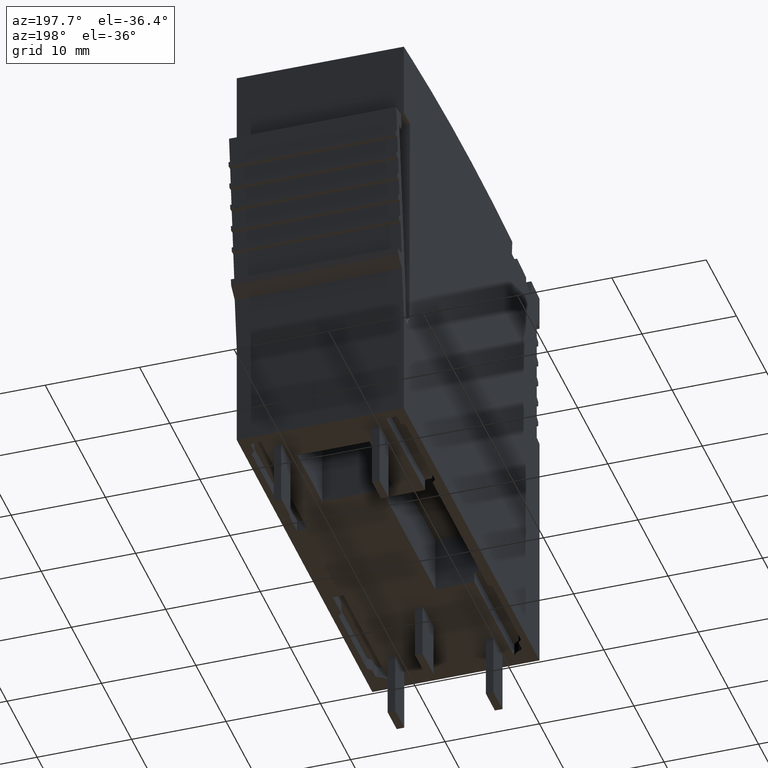
[diagram: clean part render]
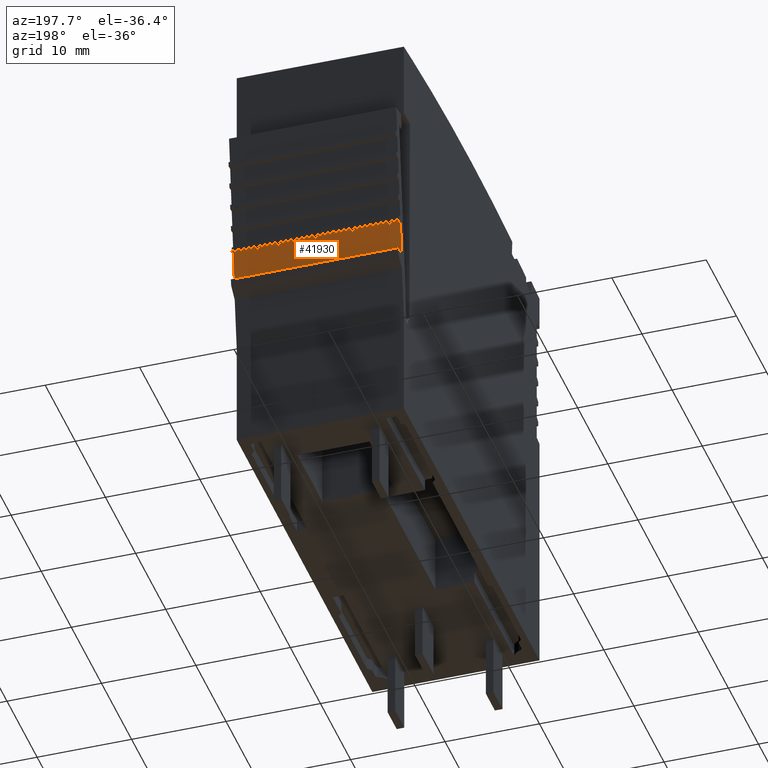
[diagram: same view with one face highlighted and labeled with its STEP entity id]
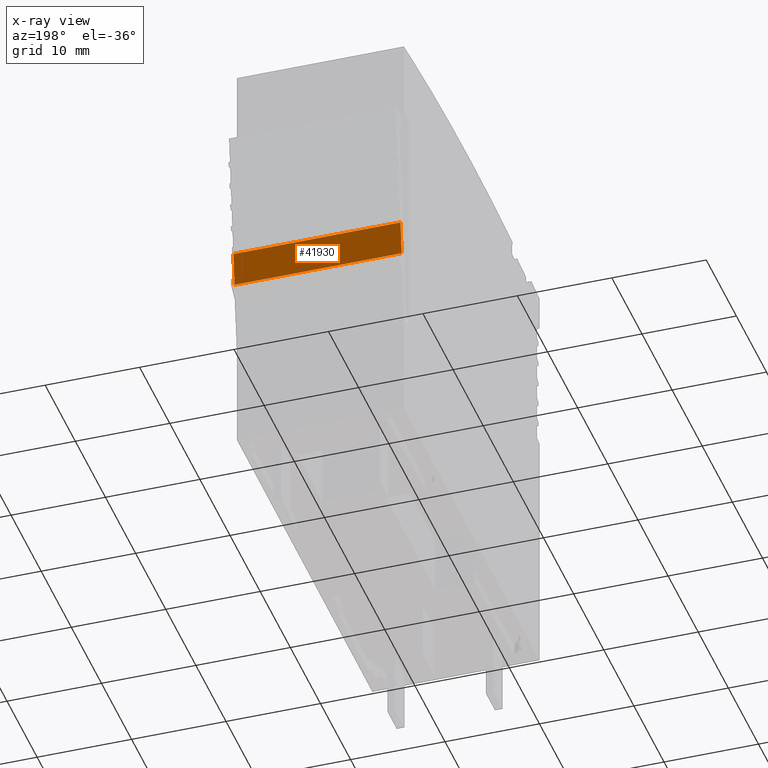
[diagram: x-ray of the same camera — body ghosted, the highlighted face saturated]
A machine part, auxiliary view. The second image highlights one B-rep face of the part: STEP entity #41930.
The next image is the same camera in x-ray: the body ghosted, the highlighted face saturated — about 0% of this face is hidden behind the body in this view.
In plain terms, the highlighted planar face has unit normal (0, -0.9945, 0.1045).
Its self-contained STEP definition (entity closure, byte-faithful):
#1200=CARTESIAN_POINT('',(135.936255351374,66.1519838805544,
-0.100000003745018));
#1210=VERTEX_POINT('',#1200);
#1240=CARTESIAN_POINT('',(139.855787870862,28.860123,-0.100000004089633)
);
#1250=DIRECTION('',(0.104528463267752,-0.994521895368263,
-9.19033351887664E-12));
#1260=VECTOR('',#1250,1.);
#1270=LINE('',#1240,#1260);
#1280=CARTESIAN_POINT('',(135.558444018703,69.7466185945195,
-0.1000000037118));
#1290=VERTEX_POINT('',#1280);
#1300=EDGE_CURVE('',#1290,#1210,#1270,.T.);
#13720=CARTESIAN_POINT('',(135.558444017147,69.7466185944788,
-17.8000000060895));
#13730=VERTEX_POINT('',#13720);
#13760=CARTESIAN_POINT('',(139.855787869303,28.860123,-17.8000000062784)
);
#13770=DIRECTION('',(0.104528463267752,-0.994521895368263,
-4.59517593110435E-12));
#13780=VECTOR('',#13770,1.);
#13790=LINE('',#13760,#13780);
#13800=CARTESIAN_POINT('',(135.936255349824,66.1519838804596,
-17.8000000061061));
#13810=VERTEX_POINT('',#13800);
#13820=EDGE_CURVE('',#13730,#13810,#13790,.T.);
#41360=CARTESIAN_POINT('',(135.936255350424,66.1519838804963,
-10.9500000050659));
#41370=DIRECTION('',(-8.75409987990523E-11,-5.35095083181142E-12,-1.));
#41380=VECTOR('',#41370,1.);
#41390=LINE('',#41360,#41380);
#41400=EDGE_CURVE('',#1210,#13810,#41390,.T.);
#41660=CARTESIAN_POINT('',(135.558444017749,69.7466185944946,
-10.9500000050493));
#41670=DIRECTION('',(8.78615896814994E-11,2.30073233551187E-12,1.));
#41680=VECTOR('',#41670,1.);
#41690=LINE('',#41660,#41680);
#41700=EDGE_CURVE('',#13730,#1290,#41690,.T.);
#41820=CARTESIAN_POINT('',(135.713186283242,68.274344292967,
-0.400000004888593));
#41830=DIRECTION('',(0.994521895368263,0.104528463267752,
-8.76207667155349E-11));
#41840=DIRECTION('',(0.104528463267752,-0.994521895368263,
-6.89590826662055E-12));
#41850=AXIS2_PLACEMENT_3D('',#41820,#41830,#41840);
#41860=PLANE('',#41850);
#41870=ORIENTED_EDGE('',*,*,#41700,.F.);
#41880=ORIENTED_EDGE('',*,*,#1300,.F.);
#41890=ORIENTED_EDGE('',*,*,#41400,.F.);
#41900=ORIENTED_EDGE('',*,*,#13820,.T.);
#41910=EDGE_LOOP('',(#41900,#41890,#41880,#41870));
#41920=FACE_OUTER_BOUND('',#41910,.T.);
#41930=ADVANCED_FACE('',(#41920),#41860,.F.);